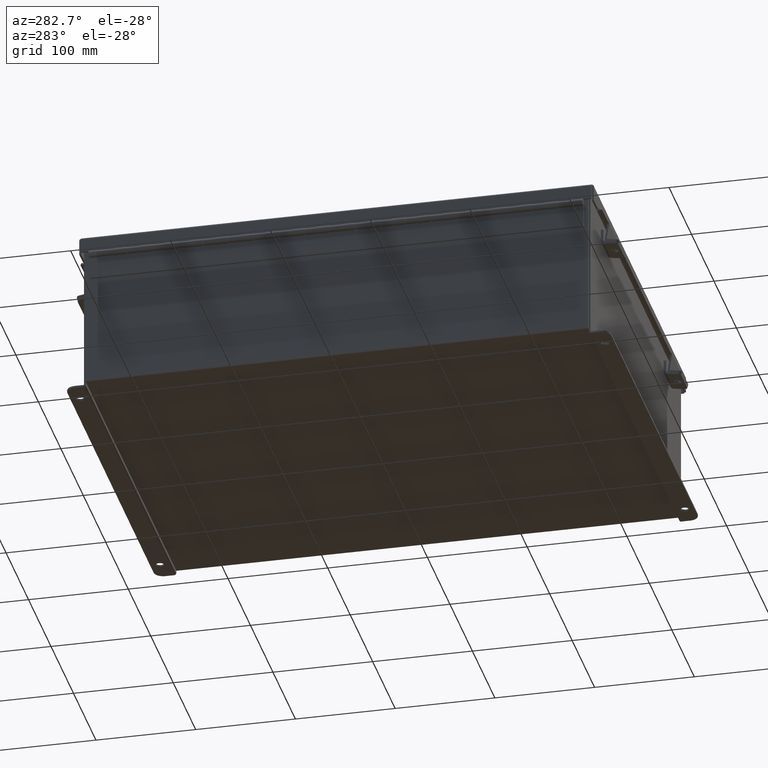
[diagram: clean part render]
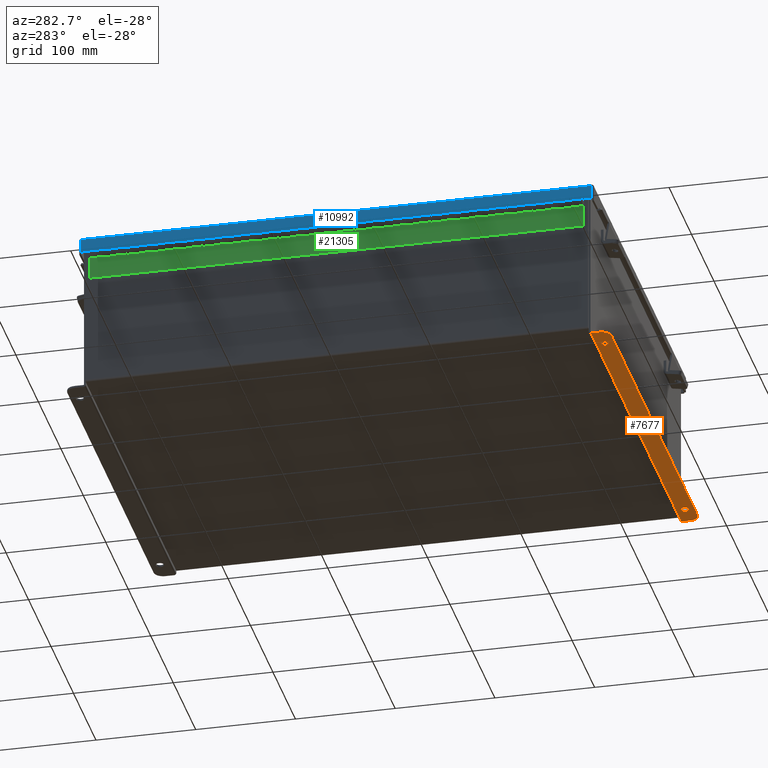
[diagram: same view with three faces highlighted in distinct colors, each labeled with its STEP entity id]
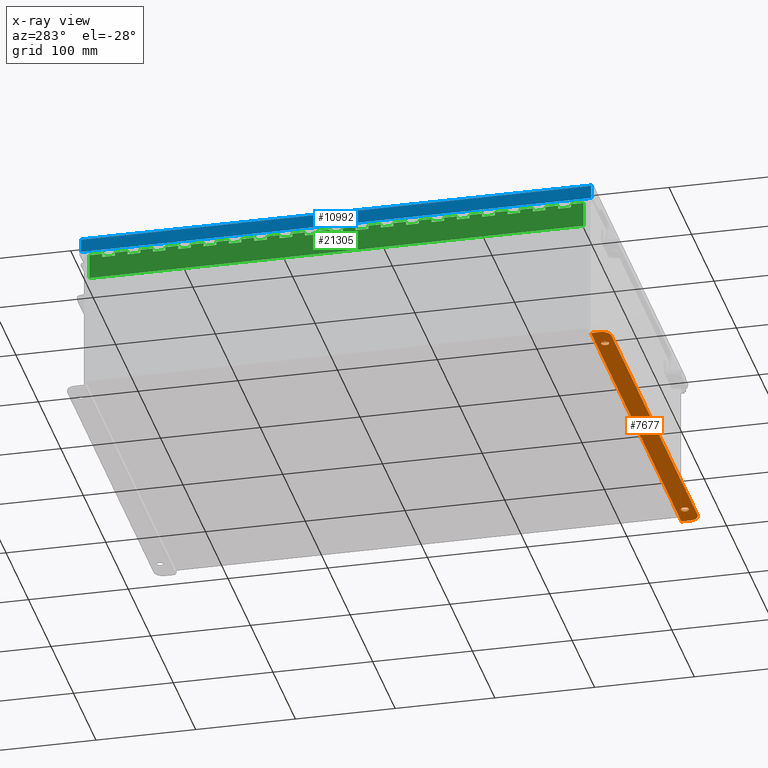
[diagram: x-ray of the same camera — body ghosted, the three highlighted faces saturated]
A machine part, auxiliary view with three faces highlighted in distinct colors.
The next image is the same camera in x-ray (body ghosted, the three faces saturated) — at least one of them is partly hidden behind the body in this view.
Their STEP definitions:

[orange] entity #7677 — the highlighted planar face has unit normal (0, -0, 1).
#29 = CARTESIAN_POINT ( 'NONE',  ( -7.550300000000000900, 0.3627999999999986800, -3.187000000000001200 ) ) ;
#65 = AXIS2_PLACEMENT_3D ( 'NONE', #9401, #4175, #2589 ) ;
#825 = PLANE ( 'NONE',  #65 ) ;
#1533 = VERTEX_POINT ( 'NONE', #7208 ) ;
#2277 = EDGE_CURVE ( 'NONE', #15697, #1533, #4062, .T. ) ;
#2589 = DIRECTION ( 'NONE',  ( -4.919856193148104900E-031, -1.000000000000000000, 3.702694488566362300E-015 ) ) ;
#2773 = FACE_BOUND ( 'NONE', #17649, .T. ) ;
#2853 = VERTEX_POINT ( 'NONE', #7172 ) ;
#3180 = CARTESIAN_POINT ( 'NONE',  ( -6.987800000000000900, 0.3627999999999986800, -3.187000000000001600 ) ) ;
#3730 = EDGE_CURVE ( 'NONE', #13118, #15697, #4523, .T. ) ;
#3871 = EDGE_CURVE ( 'NONE', #18112, #13118, #6979, .T. ) ;
#4062 = CIRCLE ( 'NONE', #13033, 0.3750000000000000600 ) ;
#4131 = CARTESIAN_POINT ( 'NONE',  ( -2.035385365534024800E-024, 0.7377999999999989000, -3.187000000000002900 ) ) ;
#4175 = DIRECTION ( 'NONE',  ( 0.0000000000000000000, 3.702694488566362300E-015, 1.000000000000000000 ) ) ;
#4201 = CARTESIAN_POINT ( 'NONE',  ( 7.925299999999998200, 0.01300000000000010700, -3.187000000000000300 ) ) ;
#4496 = VERTEX_POINT ( 'NONE', #13455 ) ;
#4523 = LINE ( 'NONE', #4131, #22411 ) ;
#4526 = ORIENTED_EDGE ( 'NONE', *, *, #13184, .F. ) ;
#4850 = EDGE_LOOP ( 'NONE', ( #22159, #5961, #15752, #16721, #12387, #20602 ) ) ;
#4891 = DIRECTION ( 'NONE',  ( 0.0000000000000000000, 1.000000000000000000, -3.502369222646487000E-015 ) ) ;
#5237 = CARTESIAN_POINT ( 'NONE',  ( 6.987799999999999100, 0.3628000000000008400, -3.187000000000001200 ) ) ;
#5961 = ORIENTED_EDGE ( 'NONE', *, *, #3871, .T. ) ;
#6384 = DIRECTION ( 'NONE',  ( 0.0000000000000000000, -3.362274453740631800E-015, -1.000000000000000000 ) ) ;
#6445 = ORIENTED_EDGE ( 'NONE', *, *, #10704, .F. ) ;
#6537 = CARTESIAN_POINT ( 'NONE',  ( -7.925300000000000900, 0.3627999999999986800, -3.187000000000005600 ) ) ;
#6721 = CIRCLE ( 'NONE', #11890, 0.1560000000000001900 ) ;
#6979 = CIRCLE ( 'NONE', #22054, 0.3750000000000000600 ) ;
#7003 = DIRECTION ( 'NONE',  ( 0.0000000000000000000, 1.000000000000000000, -3.502369222646487000E-015 ) ) ;
#7172 = CARTESIAN_POINT ( 'NONE',  ( -6.987799999999992900, 0.2067999999999984900, -3.187000000000001200 ) ) ;
#7208 = CARTESIAN_POINT ( 'NONE',  ( 7.925299999999998200, 0.3628000000000008400, -3.187000000000001600 ) ) ;
#7677 = ADVANCED_FACE ( 'NONE', ( #16533, #2773, #21212 ), #825, .F. ) ;
#7705 = LINE ( 'NONE', #21104, #16329 ) ;
#8581 = CIRCLE ( 'NONE', #19538, 0.1560000000000001900 ) ;
#8936 = ORIENTED_EDGE ( 'NONE', *, *, #11595, .F. ) ;
#9401 = CARTESIAN_POINT ( 'NONE',  ( 0.0000000000000000000, -1.092739197465705300E-014, -3.187000000000000300 ) ) ;
#9468 = AXIS2_PLACEMENT_3D ( 'NONE', #5237, #17298, #7003 ) ;
#9924 = DIRECTION ( 'NONE',  ( 0.0000000000000000000, -3.362274453740631800E-015, -1.000000000000000000 ) ) ;
#10043 = VERTEX_POINT ( 'NONE', #11052 ) ;
#10386 = CARTESIAN_POINT ( 'NONE',  ( 7.925299999999998200, -1.092739197465705300E-014, -3.187000000000000300 ) ) ;
#10704 = EDGE_CURVE ( 'NONE', #4496, #2853, #6721, .T. ) ;
#10849 = CARTESIAN_POINT ( 'NONE',  ( 6.987800000000008000, 0.2068000000000006800, -3.187000000000000700 ) ) ;
#10996 = LINE ( 'NONE', #10386, #19746 ) ;
#11052 = CARTESIAN_POINT ( 'NONE',  ( -7.925300000000000900, 0.01300000000000010700, -3.187000000000000300 ) ) ;
#11301 = CARTESIAN_POINT ( 'NONE',  ( -7.550300000000000900, 0.7377999999999989000, -3.187000000000002900 ) ) ;
#11595 = EDGE_CURVE ( 'NONE', #13592, #11736, #20858, .T. ) ;
#11736 = VERTEX_POINT ( 'NONE', #10849 ) ;
#11890 = AXIS2_PLACEMENT_3D ( 'NONE', #20347, #9924, #22091 ) ;
#11998 = EDGE_CURVE ( 'NONE', #2853, #4496, #8581, .T. ) ;
#12084 = DIRECTION ( 'NONE',  ( -4.919856193148104900E-031, -1.000000000000000000, 3.702694488566362300E-015 ) ) ;
#12089 = EDGE_CURVE ( 'NONE', #1533, #13038, #10996, .T. ) ;
#12387 = ORIENTED_EDGE ( 'NONE', *, *, #12089, .T. ) ;
#13033 = AXIS2_PLACEMENT_3D ( 'NONE', #21024, #22291, #16875 ) ;
#13038 = VERTEX_POINT ( 'NONE', #4201 ) ;
#13118 = VERTEX_POINT ( 'NONE', #11301 ) ;
#13184 = EDGE_CURVE ( 'NONE', #11736, #13592, #13378, .T. ) ;
#13378 = CIRCLE ( 'NONE', #18949, 0.1560000000000001900 ) ;
#13455 = CARTESIAN_POINT ( 'NONE',  ( -6.987800000000000900, 0.5187999999999988200, -3.187000000000002500 ) ) ;
#13584 = CARTESIAN_POINT ( 'NONE',  ( -7.925300000000000900, -1.092739197465705300E-014, -3.187000000000000300 ) ) ;
#13592 = VERTEX_POINT ( 'NONE', #18100 ) ;
#13824 = EDGE_LOOP ( 'NONE', ( #6445, #14754 ) ) ;
#14054 = DIRECTION ( 'NONE',  ( 1.000000000000000000, 4.910036603141682400E-031, -0.0000000000000000000 ) ) ;
#14666 = EDGE_CURVE ( 'NONE', #10043, #13038, #7705, .T. ) ;
#14754 = ORIENTED_EDGE ( 'NONE', *, *, #11998, .F. ) ;
#15170 = EDGE_CURVE ( 'NONE', #10043, #18112, #16300, .T. ) ;
#15227 = DIRECTION ( 'NONE',  ( 0.0000000000000000000, -3.362274453740631800E-015, -1.000000000000000000 ) ) ;
#15697 = VERTEX_POINT ( 'NONE', #17076 ) ;
#15752 = ORIENTED_EDGE ( 'NONE', *, *, #3730, .T. ) ;
#15769 = VECTOR ( 'NONE', #20565, 39.37007874015748100 ) ;
#16083 = DIRECTION ( 'NONE',  ( 0.0000000000000000000, -1.000000000000000000, 4.370956789862820400E-015 ) ) ;
#16300 = LINE ( 'NONE', #13584, #15769 ) ;
#16329 = VECTOR ( 'NONE', #14054, 39.37007874015748100 ) ;
#16533 = FACE_BOUND ( 'NONE', #13824, .T. ) ;
#16690 = CARTESIAN_POINT ( 'NONE',  ( 6.987799999999999100, 0.3628000000000008400, -3.187000000000001200 ) ) ;
#16721 = ORIENTED_EDGE ( 'NONE', *, *, #2277, .T. ) ;
#16875 = DIRECTION ( 'NONE',  ( 0.0000000000000000000, -1.000000000000000000, 4.370956789862820400E-015 ) ) ;
#17076 = CARTESIAN_POINT ( 'NONE',  ( 7.550299999999998200, 0.7378000000000011200, -3.187000000000002900 ) ) ;
#17298 = DIRECTION ( 'NONE',  ( 0.0000000000000000000, -3.362274453740631800E-015, -1.000000000000000000 ) ) ;
#17525 = DIRECTION ( 'NONE',  ( 1.000000000000000000, 4.910036603141682400E-031, 0.0000000000000000000 ) ) ;
#17649 = EDGE_LOOP ( 'NONE', ( #8936, #4526 ) ) ;
#17755 = DIRECTION ( 'NONE',  ( -0.0000000000000000000, -3.702694488566362300E-015, -1.000000000000000000 ) ) ;
#18100 = CARTESIAN_POINT ( 'NONE',  ( 6.987799999999999100, 0.5188000000000010400, -3.187000000000001600 ) ) ;
#18112 = VERTEX_POINT ( 'NONE', #6537 ) ;
#18440 = DIRECTION ( 'NONE',  ( 0.0000000000000000000, 1.000000000000000000, -3.502369222646487000E-015 ) ) ;
#18949 = AXIS2_PLACEMENT_3D ( 'NONE', #16690, #6384, #18440 ) ;
#19538 = AXIS2_PLACEMENT_3D ( 'NONE', #3180, #15227, #4891 ) ;
#19746 = VECTOR ( 'NONE', #12084, 39.37007874015748100 ) ;
#20347 = CARTESIAN_POINT ( 'NONE',  ( -6.987800000000000900, 0.3627999999999986800, -3.187000000000001600 ) ) ;
#20565 = DIRECTION ( 'NONE',  ( 4.919856193148104900E-031, 1.000000000000000000, -3.702694488566362300E-015 ) ) ;
#20602 = ORIENTED_EDGE ( 'NONE', *, *, #14666, .F. ) ;
#20858 = CIRCLE ( 'NONE', #9468, 0.1560000000000001900 ) ;
#21024 = CARTESIAN_POINT ( 'NONE',  ( 7.550299999999998200, 0.3628000000000008400, -3.187000000000001200 ) ) ;
#21104 = CARTESIAN_POINT ( 'NONE',  ( 7.925299999999998200, 0.01300000000000229300, -3.187000000000000300 ) ) ;
#21212 = FACE_OUTER_BOUND ( 'NONE', #4850, .T. ) ;
#22054 = AXIS2_PLACEMENT_3D ( 'NONE', #29, #17755, #16083 ) ;
#22091 = DIRECTION ( 'NONE',  ( 0.0000000000000000000, 1.000000000000000000, -3.502369222646487000E-015 ) ) ;
#22159 = ORIENTED_EDGE ( 'NONE', *, *, #15170, .T. ) ;
#22291 = DIRECTION ( 'NONE',  ( -0.0000000000000000000, -3.702694488566362300E-015, -1.000000000000000000 ) ) ;
#22411 = VECTOR ( 'NONE', #17525, 39.37007874015748100 ) ;

[blue] entity #10992 — the highlighted planar face has unit normal (1, -0, 0).
#466 = VECTOR ( 'NONE', #9763, 39.37007874015748100 ) ;
#1637 = FACE_OUTER_BOUND ( 'NONE', #15994, .T. ) ;
#2023 = CARTESIAN_POINT ( 'NONE',  ( 8.156250000000003600, -10.07447893218815200, 0.5502999999999999000 ) ) ;
#2263 = DIRECTION ( 'NONE',  ( 3.971430846686188400E-015, 0.0000000000000000000, 1.000000000000000000 ) ) ;
#3194 = CARTESIAN_POINT ( 'NONE',  ( 8.156250000000001800, 10.07447893218811600, 0.01300000000000010700 ) ) ;
#3719 = EDGE_CURVE ( 'NONE', #8747, #14632, #14759, .T. ) ;
#3767 = DIRECTION ( 'NONE',  ( 3.971430846686188400E-015, 0.0000000000000000000, 1.000000000000000000 ) ) ;
#5188 = VERTEX_POINT ( 'NONE', #21215 ) ;
#5425 = CARTESIAN_POINT ( 'NONE',  ( 8.156250000000001800, 0.0000000000000000000, -3.168943672650545400E-014 ) ) ;
#7338 = LINE ( 'NONE', #15513, #15945 ) ;
#7356 = VECTOR ( 'NONE', #2263, 39.37007874015748100 ) ;
#8270 = EDGE_CURVE ( 'NONE', #9616, #8747, #17054, .T. ) ;
#8747 = VERTEX_POINT ( 'NONE', #15502 ) ;
#8864 = PLANE ( 'NONE',  #16134 ) ;
#9103 = CARTESIAN_POINT ( 'NONE',  ( 8.156250000000001800, 10.07447893218811600, -3.278217592397115700E-014 ) ) ;
#9506 = CARTESIAN_POINT ( 'NONE',  ( 8.156250000000001800, -10.07447893218815200, -1.092739197465705300E-015 ) ) ;
#9616 = VERTEX_POINT ( 'NONE', #3194 ) ;
#9763 = DIRECTION ( 'NONE',  ( -2.258600338820354400E-033, -1.000000000000000000, 0.0000000000000000000 ) ) ;
#10919 = EDGE_CURVE ( 'NONE', #9616, #5188, #7338, .T. ) ;
#10964 = LINE ( 'NONE', #9506, #20800 ) ;
#10992 = ADVANCED_FACE ( 'NONE', ( #1637 ), #8864, .F. ) ;
#11039 = CARTESIAN_POINT ( 'NONE',  ( 8.156250000000003600, 0.0000000000000000000, 0.5503000000000010100 ) ) ;
#11232 = DIRECTION ( 'NONE',  ( 3.971430846686188400E-015, -0.0000000000000000000, 1.000000000000000000 ) ) ;
#11434 = ORIENTED_EDGE ( 'NONE', *, *, #10919, .F. ) ;
#13069 = EDGE_CURVE ( 'NONE', #5188, #14632, #10964, .T. ) ;
#13373 = ORIENTED_EDGE ( 'NONE', *, *, #13069, .F. ) ;
#14062 = DIRECTION ( 'NONE',  ( -1.000000000000000000, -1.157229917429806600E-033, 3.971430846686188400E-015 ) ) ;
#14632 = VERTEX_POINT ( 'NONE', #2023 ) ;
#14759 = LINE ( 'NONE', #11039, #466 ) ;
#15502 = CARTESIAN_POINT ( 'NONE',  ( 8.156250000000003600, 10.07447893218811600, 0.5502999999999999000 ) ) ;
#15513 = CARTESIAN_POINT ( 'NONE',  ( 8.156250000000001800, -10.15625000000001600, 0.01299999999999901400 ) ) ;
#15945 = VECTOR ( 'NONE', #19027, 39.37007874015748100 ) ;
#15994 = EDGE_LOOP ( 'NONE', ( #11434, #20668, #20214, #13373 ) ) ;
#16134 = AXIS2_PLACEMENT_3D ( 'NONE', #5425, #14062, #3767 ) ;
#17054 = LINE ( 'NONE', #9103, #7356 ) ;
#19027 = DIRECTION ( 'NONE',  ( -2.258600338820354400E-033, -1.000000000000000000, -0.0000000000000000000 ) ) ;
#20214 = ORIENTED_EDGE ( 'NONE', *, *, #3719, .T. ) ;
#20668 = ORIENTED_EDGE ( 'NONE', *, *, #8270, .T. ) ;
#20800 = VECTOR ( 'NONE', #11232, 39.37007874015748100 ) ;
#21215 = CARTESIAN_POINT ( 'NONE',  ( 8.156250000000001800, -10.07447893218815200, 0.01299999999999901400 ) ) ;

[green] entity #21305 — the highlighted planar face has unit normal (1, -0, 0).
#63 = DIRECTION ( 'NONE',  ( 0.0000000000000000000, 1.000000000000000000, 0.0000000000000000000 ) ) ;
#86 = EDGE_CURVE ( 'NONE', #16788, #5816, #7884, .T. ) ;
#121 = ORIENTED_EDGE ( 'NONE', *, *, #11377, .F. ) ;
#156 = EDGE_CURVE ( 'NONE', #17509, #3802, #15972, .T. ) ;
#235 = CARTESIAN_POINT ( 'NONE',  ( 1.521028919549333600E-013, 5.999999999999999100, 0.0000000000000000000 ) ) ;
#273 = CARTESIAN_POINT ( 'NONE',  ( 1.521028919549333600E-013, 8.999999999999998200, 0.0000000000000000000 ) ) ;
#352 = VERTEX_POINT ( 'NONE', #8142 ) ;
#419 = CARTESIAN_POINT ( 'NONE',  ( 0.2730000000000000200, 2.500000000000000000, 0.0000000000000000000 ) ) ;
#518 = DIRECTION ( 'NONE',  ( 0.0000000000000000000, 1.000000000000000000, 0.0000000000000000000 ) ) ;
#540 = EDGE_CURVE ( 'NONE', #14112, #16788, #14589, .T. ) ;
#608 = CARTESIAN_POINT ( 'NONE',  ( 0.2730000000000000200, -11.99999999999999800, 0.0000000000000000000 ) ) ;
#692 = VECTOR ( 'NONE', #7540, 39.37007874015748100 ) ;
#737 = ORIENTED_EDGE ( 'NONE', *, *, #18498, .F. ) ;
#800 = EDGE_CURVE ( 'NONE', #18290, #10637, #6258, .T. ) ;
#804 = CARTESIAN_POINT ( 'NONE',  ( 0.1365000000000000100, 17.00000000000000000, -1.707404996040164500E-017 ) ) ;
#814 = VECTOR ( 'NONE', #2539, 39.37007874015748100 ) ;
#866 = DIRECTION ( 'NONE',  ( -1.000000000000000000, 8.005415366049124900E-015, 0.0000000000000000000 ) ) ;
#895 = LINE ( 'NONE', #2235, #4937 ) ;
#900 = LINE ( 'NONE', #12818, #15201 ) ;
#959 = VECTOR ( 'NONE', #2925, 39.37007874015748100 ) ;
#989 = EDGE_CURVE ( 'NONE', #7596, #15606, #21419, .T. ) ;
#1069 = CARTESIAN_POINT ( 'NONE',  ( 0.1365000000000000100, 10.50000000000000000, -1.707404996040164500E-017 ) ) ;
#1100 = VERTEX_POINT ( 'NONE', #7272 ) ;
#1123 = ORIENTED_EDGE ( 'NONE', *, *, #21147, .T. ) ;
#1190 = VECTOR ( 'NONE', #13227, 39.37007874015748100 ) ;
#1193 = FACE_OUTER_BOUND ( 'NONE', #7568, .T. ) ;
#1195 = ORIENTED_EDGE ( 'NONE', *, *, #15276, .F. ) ;
#1214 = CARTESIAN_POINT ( 'NONE',  ( 0.1365000000000000100, 3.999999999999998200, -1.707404996040164500E-017 ) ) ;
#1243 = CARTESIAN_POINT ( 'NONE',  ( 0.2730000000000000200, 15.99999999999999800, 0.0000000000000000000 ) ) ;
#1362 = LINE ( 'NONE', #7672, #19225 ) ;
#1376 = VERTEX_POINT ( 'NONE', #10466 ) ;
#1396 = CARTESIAN_POINT ( 'NONE',  ( 0.1365000000000000100, 13.00000000000000000, -1.707404996040164500E-017 ) ) ;
#1417 = LINE ( 'NONE', #15319, #15163 ) ;
#1437 = LINE ( 'NONE', #16012, #10047 ) ;
#1521 = VECTOR ( 'NONE', #21062, 39.37007874015748100 ) ;
#1547 = ORIENTED_EDGE ( 'NONE', *, *, #86, .F. ) ;
#1582 = VECTOR ( 'NONE', #19672, 39.37007874015748100 ) ;
#1588 = CARTESIAN_POINT ( 'NONE',  ( 0.1365000000000000100, 1.500000000000000900, -1.707404996040164500E-017 ) ) ;
#1589 = EDGE_CURVE ( 'NONE', #6855, #2973, #2210, .T. ) ;
#1635 = LINE ( 'NONE', #5653, #5721 ) ;
#1647 = VECTOR ( 'NONE', #4238, 39.37007874015748100 ) ;
#1648 = ORIENTED_EDGE ( 'NONE', *, *, #20995, .T. ) ;
#1691 = VECTOR ( 'NONE', #19886, 39.37007874015748100 ) ;
#1717 = LINE ( 'NONE', #2945, #1190 ) ;
#1760 = CARTESIAN_POINT ( 'NONE',  ( 1.136500000000000100, 0.0000000000000000000, 0.0000000000000000000 ) ) ;
#1761 = VERTEX_POINT ( 'NONE', #8027 ) ;
#1783 = EDGE_CURVE ( 'NONE', #8485, #6176, #3548, .T. ) ;
#1810 = EDGE_CURVE ( 'NONE', #16792, #19580, #11575, .T. ) ;
#1844 = VECTOR ( 'NONE', #5433, 39.37007874015748100 ) ;
#1864 = DIRECTION ( 'NONE',  ( -7.004738445292983000E-018, 1.000000000000000000, 0.0000000000000000000 ) ) ;
#1888 = CARTESIAN_POINT ( 'NONE',  ( 0.0000000000000000000, 4.500000000000000900, 0.0000000000000000000 ) ) ;
#1890 = LINE ( 'NONE', #8761, #15649 ) ;
#1904 = CARTESIAN_POINT ( 'NONE',  ( 0.2730000000000000200, 3.499999999999999100, 0.0000000000000000000 ) ) ;
#2069 = VERTEX_POINT ( 'NONE', #1069 ) ;
#2099 = CARTESIAN_POINT ( 'NONE',  ( 0.1365000000000000100, 16.00000000000000000, -1.707404996040164500E-017 ) ) ;
#2143 = CARTESIAN_POINT ( 'NONE',  ( 0.0000000000000000000, 16.50000000000000000, 0.0000000000000000000 ) ) ;
#2163 = VERTEX_POINT ( 'NONE', #8307 ) ;
#2196 = CARTESIAN_POINT ( 'NONE',  ( 0.2730000000000000200, 9.999999999999996400, 0.0000000000000000000 ) ) ;
#2203 = EDGE_CURVE ( 'NONE', #18021, #22326, #7328, .T. ) ;
#2210 = LINE ( 'NONE', #17846, #1647 ) ;
#2234 = VECTOR ( 'NONE', #21099, 39.37007874015748100 ) ;
#2235 = CARTESIAN_POINT ( 'NONE',  ( 0.0000000000000000000, 17.50000000000000000, 0.0000000000000000000 ) ) ;
#2239 = VERTEX_POINT ( 'NONE', #16087 ) ;
#2287 = ORIENTED_EDGE ( 'NONE', *, *, #12135, .T. ) ;
#2364 = CARTESIAN_POINT ( 'NONE',  ( 0.2730000000000000200, -5.999999999999999100, 0.0000000000000000000 ) ) ;
#2408 = CARTESIAN_POINT ( 'NONE',  ( 0.2730000000000000200, 6.500000000000000900, 0.0000000000000000000 ) ) ;
#2412 = VECTOR ( 'NONE', #16959, 39.37007874015748100 ) ;
#2429 = VERTEX_POINT ( 'NONE', #20254 ) ;
#2504 = ORIENTED_EDGE ( 'NONE', *, *, #1783, .F. ) ;
#2539 = DIRECTION ( 'NONE',  ( -1.000000000000000000, 0.0000000000000000000, 0.0000000000000000000 ) ) ;
#2553 = VECTOR ( 'NONE', #15928, 39.37007874015748100 ) ;
#2561 = DIRECTION ( 'NONE',  ( 0.0000000000000000000, 1.000000000000000000, 0.0000000000000000000 ) ) ;
#2607 = VERTEX_POINT ( 'NONE', #5893 ) ;
#2616 = ORIENTED_EDGE ( 'NONE', *, *, #20107, .F. ) ;
#2702 = EDGE_CURVE ( 'NONE', #12255, #21248, #18908, .T. ) ;
#2719 = CARTESIAN_POINT ( 'NONE',  ( 0.2730000000000000200, -13.00000000000000000, 0.0000000000000000000 ) ) ;
#2769 = ORIENTED_EDGE ( 'NONE', *, *, #2203, .F. ) ;
#2784 = CARTESIAN_POINT ( 'NONE',  ( 0.0000000000000000000, 8.500000000000000000, 0.0000000000000000000 ) ) ;
#2786 = ORIENTED_EDGE ( 'NONE', *, *, #10486, .F. ) ;
#2813 = VECTOR ( 'NONE', #11697, 39.37007874015748100 ) ;
#2868 = EDGE_CURVE ( 'NONE', #15768, #8889, #16713, .T. ) ;
#2873 = VERTEX_POINT ( 'NONE', #16507 ) ;
#2895 = EDGE_CURVE ( 'NONE', #8889, #15808, #17260, .T. ) ;
#2925 = DIRECTION ( 'NONE',  ( -1.000000000000000000, 8.005415366049124900E-015, 0.0000000000000000000 ) ) ;
#2945 = CARTESIAN_POINT ( 'NONE',  ( 0.1365000000000000100, 0.0000000000000000000, -1.707404996040164500E-017 ) ) ;
#2950 = CARTESIAN_POINT ( 'NONE',  ( 0.1365000000000000100, 12.50000000000000000, -1.707404996040164500E-017 ) ) ;
#2973 = VERTEX_POINT ( 'NONE', #8619 ) ;
#2987 = CARTESIAN_POINT ( 'NONE',  ( 1.521028919549333600E-013, 19.00000000000000000, 0.0000000000000000000 ) ) ;
#3078 = CARTESIAN_POINT ( 'NONE',  ( 0.0000000000000000000, 3.499999999999999100, 0.0000000000000000000 ) ) ;
#3115 = DIRECTION ( 'NONE',  ( 0.0000000000000000000, 1.000000000000000000, 0.0000000000000000000 ) ) ;
#3161 = CARTESIAN_POINT ( 'NONE',  ( 0.2730000000000000200, -2.000000000000000000, 0.0000000000000000000 ) ) ;
#3183 = CARTESIAN_POINT ( 'NONE',  ( 0.2730000000000000200, -7.000000000000000000, 0.0000000000000000000 ) ) ;
#3188 = ORIENTED_EDGE ( 'NONE', *, *, #8497, .F. ) ;
#3190 = VECTOR ( 'NONE', #2561, 39.37007874015748100 ) ;
#3231 = CARTESIAN_POINT ( 'NONE',  ( 0.1365000000000000100, 0.0000000000000000000, -1.707404996040164500E-017 ) ) ;
#3299 = CARTESIAN_POINT ( 'NONE',  ( 0.1365000000000000100, 0.0000000000000000000, -1.707404996040164500E-017 ) ) ;
#3340 = EDGE_CURVE ( 'NONE', #14164, #1376, #10984, .T. ) ;
#3366 = VERTEX_POINT ( 'NONE', #15588 ) ;
#3381 = DIRECTION ( 'NONE',  ( 0.0000000000000000000, 1.000000000000000000, 0.0000000000000000000 ) ) ;
#3429 = VERTEX_POINT ( 'NONE', #12007 ) ;
#3435 = VERTEX_POINT ( 'NONE', #20868 ) ;
#3475 = VERTEX_POINT ( 'NONE', #22300 ) ;
#3523 = ORIENTED_EDGE ( 'NONE', *, *, #21290, .F. ) ;
#3548 = LINE ( 'NONE', #21682, #8103 ) ;
#3636 = LINE ( 'NONE', #4953, #16848 ) ;
#3639 = EDGE_CURVE ( 'NONE', #9602, #11334, #14775, .T. ) ;
#3650 = VERTEX_POINT ( 'NONE', #2099 ) ;
#3657 = VERTEX_POINT ( 'NONE', #17638 ) ;
#3690 = ORIENTED_EDGE ( 'NONE', *, *, #15982, .F. ) ;
#3740 = EDGE_CURVE ( 'NONE', #14112, #11676, #18276, .T. ) ;
#3795 = ORIENTED_EDGE ( 'NONE', *, *, #13796, .F. ) ;
#3802 = VERTEX_POINT ( 'NONE', #13645 ) ;
#3855 = CARTESIAN_POINT ( 'NONE',  ( 0.2730000000000000200, 8.999999999999996400, 0.0000000000000000000 ) ) ;
#3967 = DIRECTION ( 'NONE',  ( 0.0000000000000000000, 1.000000000000000000, 0.0000000000000000000 ) ) ;
#4026 = VERTEX_POINT ( 'NONE', #10685 ) ;
#4088 = DIRECTION ( 'NONE',  ( 0.0000000000000000000, 1.000000000000000000, 0.0000000000000000000 ) ) ;
#4093 = ORIENTED_EDGE ( 'NONE', *, *, #3340, .T. ) ;
#4176 = VECTOR ( 'NONE', #5849, 39.37007874015748100 ) ;
#4204 = CARTESIAN_POINT ( 'NONE',  ( 0.1365000000000000100, 0.0000000000000000000, -1.707404996040164500E-017 ) ) ;
#4238 = DIRECTION ( 'NONE',  ( 0.0000000000000000000, 1.000000000000000000, 0.0000000000000000000 ) ) ;
#4264 = CARTESIAN_POINT ( 'NONE',  ( 0.2730000000000000200, 4.999999999999998200, 0.0000000000000000000 ) ) ;
#4326 = ORIENTED_EDGE ( 'NONE', *, *, #2868, .T. ) ;
#4328 = ORIENTED_EDGE ( 'NONE', *, *, #17001, .T. ) ;
#4375 = VERTEX_POINT ( 'NONE', #16769 ) ;
#4381 = VECTOR ( 'NONE', #19979, 39.37007874015748100 ) ;
#4405 = VECTOR ( 'NONE', #15713, 39.37007874015748100 ) ;
#4514 = CARTESIAN_POINT ( 'NONE',  ( 0.2730000000000000200, 0.4999999999999996100, 0.0000000000000000000 ) ) ;
#4521 = DIRECTION ( 'NONE',  ( -1.000000000000000000, 0.0000000000000000000, 0.0000000000000000000 ) ) ;
#4587 = CARTESIAN_POINT ( 'NONE',  ( 0.1365000000000000100, 0.0000000000000000000, -1.707404996040164500E-017 ) ) ;
#4629 = VECTOR ( 'NONE', #6260, 39.37007874015748100 ) ;
#4817 = VERTEX_POINT ( 'NONE', #14430 ) ;
#4851 = DIRECTION ( 'NONE',  ( -1.000000000000000000, 0.0000000000000000000, 0.0000000000000000000 ) ) ;
#4881 = LINE ( 'NONE', #3231, #17575 ) ;
#4897 = EDGE_CURVE ( 'NONE', #2873, #7112, #12531, .T. ) ;
#4937 = VECTOR ( 'NONE', #17758, 39.37007874015748100 ) ;
#4945 = DIRECTION ( 'NONE',  ( 0.0000000000000000000, 1.000000000000000000, 0.0000000000000000000 ) ) ;
#4948 = CARTESIAN_POINT ( 'NONE',  ( 0.0000000000000000000, 6.500000000000000900, 0.0000000000000000000 ) ) ;
#4953 = CARTESIAN_POINT ( 'NONE',  ( 0.1365000000000000100, 0.0000000000000000000, -1.707404996040164500E-017 ) ) ;
#4987 = DIRECTION ( 'NONE',  ( 0.0000000000000000000, 1.000000000000000000, 0.0000000000000000000 ) ) ;
#4989 = LINE ( 'NONE', #2987, #14155 ) ;
#5021 = LINE ( 'NONE', #13611, #18243 ) ;
#5055 = VERTEX_POINT ( 'NONE', #20992 ) ;
#5139 = VECTOR ( 'NONE', #19935, 39.37007874015748100 ) ;
#5168 = CARTESIAN_POINT ( 'NONE',  ( 1.136499999999999800, 19.50000000000000000, 0.0000000000000000000 ) ) ;
#5169 = CARTESIAN_POINT ( 'NONE',  ( 0.1365000000000000100, 8.999999999999998200, -1.707404996040164500E-017 ) ) ;
#5210 = VERTEX_POINT ( 'NONE', #21453 ) ;
#5234 = CARTESIAN_POINT ( 'NONE',  ( 0.2730000000000000200, 16.99999999999999600, 0.0000000000000000000 ) ) ;
#5267 = CARTESIAN_POINT ( 'NONE',  ( 1.521028919549333600E-013, 16.00000000000000000, 0.0000000000000000000 ) ) ;
#5365 = ORIENTED_EDGE ( 'NONE', *, *, #17945, .F. ) ;
#5386 = EDGE_CURVE ( 'NONE', #10234, #8485, #21788, .T. ) ;
#5433 = DIRECTION ( 'NONE',  ( 0.0000000000000000000, 1.000000000000000000, 0.0000000000000000000 ) ) ;
#5448 = VECTOR ( 'NONE', #4945, 39.37007874015748100 ) ;
#5477 = ORIENTED_EDGE ( 'NONE', *, *, #12341, .T. ) ;
#5530 = VECTOR ( 'NONE', #12310, 39.37007874015748100 ) ;
#5580 = LINE ( 'NONE', #5267, #9574 ) ;
#5623 = ORIENTED_EDGE ( 'NONE', *, *, #4897, .T. ) ;
#5625 = CARTESIAN_POINT ( 'NONE',  ( 0.2730000000000000200, 15.50000000000000000, 0.0000000000000000000 ) ) ;
#5653 = CARTESIAN_POINT ( 'NONE',  ( 0.0000000000000000000, 0.0000000000000000000, 0.0000000000000000000 ) ) ;
#5677 = DIRECTION ( 'NONE',  ( -1.000000000000000000, 8.005415366049124900E-015, 0.0000000000000000000 ) ) ;
#5687 = CARTESIAN_POINT ( 'NONE',  ( 0.1365000000000000100, 0.0000000000000000000, -1.707404996040164500E-017 ) ) ;
#5721 = VECTOR ( 'NONE', #14200, 39.37007874015748100 ) ;
#5752 = DIRECTION ( 'NONE',  ( -1.000000000000000000, 0.0000000000000000000, 0.0000000000000000000 ) ) ;
#5802 = EDGE_CURVE ( 'NONE', #15726, #15808, #16574, .T. ) ;
#5803 = CARTESIAN_POINT ( 'NONE',  ( 0.1365000000000000100, 11.99999999999999800, -1.707404996040164500E-017 ) ) ;
#5816 = VERTEX_POINT ( 'NONE', #20937 ) ;
#5849 = DIRECTION ( 'NONE',  ( 0.0000000000000000000, 1.000000000000000000, 0.0000000000000000000 ) ) ;
#5890 = CARTESIAN_POINT ( 'NONE',  ( 0.1365000000000000100, 11.50000000000000200, -1.707404996040164500E-017 ) ) ;
#5893 = CARTESIAN_POINT ( 'NONE',  ( 0.1365000000000000100, 9.500000000000000000, -1.707404996040164500E-017 ) ) ;
#5934 = VECTOR ( 'NONE', #15689, 39.37007874015748100 ) ;
#5954 = EDGE_CURVE ( 'NONE', #3435, #15726, #4989, .T. ) ;
#6086 = EDGE_CURVE ( 'NONE', #4817, #18551, #11951, .T. ) ;
#6111 = LINE ( 'NONE', #14983, #959 ) ;
#6136 = LINE ( 'NONE', #13531, #18816 ) ;
#6139 = LINE ( 'NONE', #235, #1521 ) ;
#6152 = ORIENTED_EDGE ( 'NONE', *, *, #2702, .F. ) ;
#6175 = VECTOR ( 'NONE', #19788, 39.37007874015748100 ) ;
#6176 = VERTEX_POINT ( 'NONE', #8806 ) ;
#6249 = LINE ( 'NONE', #9072, #14305 ) ;
#6258 = LINE ( 'NONE', #19527, #14852 ) ;
#6260 = DIRECTION ( 'NONE',  ( 0.0000000000000000000, 1.000000000000000000, 0.0000000000000000000 ) ) ;
#6267 = ORIENTED_EDGE ( 'NONE', *, *, #15102, .F. ) ;
#6290 = DIRECTION ( 'NONE',  ( 0.0000000000000000000, 1.000000000000000000, 0.0000000000000000000 ) ) ;
#6302 = LINE ( 'NONE', #12906, #1691 ) ;
#6347 = VECTOR ( 'NONE', #4521, 39.37007874015748100 ) ;
#6349 = VERTEX_POINT ( 'NONE', #5890 ) ;
#6548 = LINE ( 'NONE', #6621, #18667 ) ;
#6577 = LINE ( 'NONE', #15199, #15160 ) ;
#6621 = CARTESIAN_POINT ( 'NONE',  ( 0.0000000000000000000, 0.4999999999999996100, 0.0000000000000000000 ) ) ;
#6704 = CARTESIAN_POINT ( 'NONE',  ( 0.2730000000000000200, 5.500000000000000000, 0.0000000000000000000 ) ) ;
#6785 = VERTEX_POINT ( 'NONE', #21027 ) ;
#6838 = VECTOR ( 'NONE', #10691, 39.37007874015748100 ) ;
#6855 = VERTEX_POINT ( 'NONE', #21527 ) ;
#6877 = EDGE_CURVE ( 'NONE', #11334, #11676, #900, .T. ) ;
#6904 = DIRECTION ( 'NONE',  ( -1.000000000000000000, 8.005415366049124900E-015, 0.0000000000000000000 ) ) ;
#6909 = CARTESIAN_POINT ( 'NONE',  ( 0.1365000000000000100, 17.50000000000000000, -1.707404996040164500E-017 ) ) ;
#6943 = DIRECTION ( 'NONE',  ( -1.000000000000000000, 0.0000000000000000000, -0.0000000000000000000 ) ) ;
#6980 = ORIENTED_EDGE ( 'NONE', *, *, #14302, .F. ) ;
#7005 = LINE ( 'NONE', #17483, #1844 ) ;
#7045 = VECTOR ( 'NONE', #16623, 39.37007874015748100 ) ;
#7112 = VERTEX_POINT ( 'NONE', #15573 ) ;
#7119 = VERTEX_POINT ( 'NONE', #4264 ) ;
#7193 = CARTESIAN_POINT ( 'NONE',  ( 0.1365000000000000100, 2.999999999999999100, -1.707404996040164500E-017 ) ) ;
#7213 = ORIENTED_EDGE ( 'NONE', *, *, #8668, .F. ) ;
#7242 = DIRECTION ( 'NONE',  ( -1.000000000000000000, 0.0000000000000000000, 0.0000000000000000000 ) ) ;
#7272 = CARTESIAN_POINT ( 'NONE',  ( 0.2730000000000000200, 9.500000000000000000, 0.0000000000000000000 ) ) ;
#7328 = LINE ( 'NONE', #8916, #5139 ) ;
#7335 = VERTEX_POINT ( 'NONE', #5169 ) ;
#7491 = VERTEX_POINT ( 'NONE', #12884 ) ;
#7540 = DIRECTION ( 'NONE',  ( -1.000000000000000000, 8.005415366049124900E-015, 0.0000000000000000000 ) ) ;
#7568 = EDGE_LOOP ( 'NONE', ( #19695, #5365, #15280, #4326, #11032, #14620, #14729, #20870, #18749, #7213, #2769, #2786, #8375, #13807, #15275, #6267, #15861, #22029, #12802, #3523, #4328, #10650, #3795, #10478, #21541, #16668, #9437, #16837, #5623, #737, #8540, #12794, #15862, #6980, #15284, #21066, #1648, #17585, #2504, #8011, #15633, #15577, #6152, #19866, #7764, #10310, #1195, #3690, #9789, #18578, #1547, #16510, #20399, #15731, #10485, #2616, #4093, #16937, #19295, #9985, #17287, #11152, #16029, #18835, #2287, #19237, #16124, #17682, #1123, #3188, #10319, #18495, #18789, #11622, #121, #12192, #5477, #11134, #18277, #22312 ) ) ;
#7596 = VERTEX_POINT ( 'NONE', #19626 ) ;
#7627 = VERTEX_POINT ( 'NONE', #12719 ) ;
#7638 = CARTESIAN_POINT ( 'NONE',  ( 0.2730000000000000200, 11.50000000000000200, 0.0000000000000000000 ) ) ;
#7647 = VERTEX_POINT ( 'NONE', #7638 ) ;
#7672 = CARTESIAN_POINT ( 'NONE',  ( 1.521028919549333600E-013, 14.00000000000000000, 0.0000000000000000000 ) ) ;
#7764 = ORIENTED_EDGE ( 'NONE', *, *, #21028, .T. ) ;
#7780 = VERTEX_POINT ( 'NONE', #9635 ) ;
#7796 = DIRECTION ( 'NONE',  ( 0.0000000000000000000, 1.000000000000000000, 0.0000000000000000000 ) ) ;
#7810 = EDGE_CURVE ( 'NONE', #5816, #14086, #14343, .T. ) ;
#7884 = LINE ( 'NONE', #11580, #4381 ) ;
#7936 = CARTESIAN_POINT ( 'NONE',  ( 0.1365000000000000100, 0.0000000000000000000, -1.707404996040164500E-017 ) ) ;
#7953 = VECTOR ( 'NONE', #13587, 39.37007874015748100 ) ;
#7961 = LINE ( 'NONE', #10137, #16057 ) ;
#8011 = ORIENTED_EDGE ( 'NONE', *, *, #5386, .F. ) ;
#8017 = VERTEX_POINT ( 'NONE', #6909 ) ;
#8027 = CARTESIAN_POINT ( 'NONE',  ( 0.1365000000000000100, 18.50000000000000000, -1.707404996040164500E-017 ) ) ;
#8031 = CARTESIAN_POINT ( 'NONE',  ( 0.1365000000000000100, 0.0000000000000000000, -1.707404996040164500E-017 ) ) ;
#8103 = VECTOR ( 'NONE', #11404, 39.37007874015748100 ) ;
#8142 = CARTESIAN_POINT ( 'NONE',  ( 0.2730000000000000200, 12.99999999999999800, 0.0000000000000000000 ) ) ;
#8216 = VERTEX_POINT ( 'NONE', #3855 ) ;
#8252 = DIRECTION ( 'NONE',  ( -1.000000000000000000, 8.005415366049124900E-015, 0.0000000000000000000 ) ) ;
#8284 = EDGE_CURVE ( 'NONE', #12912, #19580, #11870, .T. ) ;
#8297 = DIRECTION ( 'NONE',  ( 0.0000000000000000000, 1.000000000000000000, 0.0000000000000000000 ) ) ;
#8307 = CARTESIAN_POINT ( 'NONE',  ( 0.2730000000000000200, 16.50000000000000000, 0.0000000000000000000 ) ) ;
#8319 = CARTESIAN_POINT ( 'NONE',  ( 1.521028919549333600E-013, 7.000000000000000900, 0.0000000000000000000 ) ) ;
#8375 = ORIENTED_EDGE ( 'NONE', *, *, #21539, .T. ) ;
#8433 = LINE ( 'NONE', #20285, #17112 ) ;
#8442 = EDGE_CURVE ( 'NONE', #16675, #7119, #8651, .T. ) ;
#8485 = VERTEX_POINT ( 'NONE', #20106 ) ;
#8497 = EDGE_CURVE ( 'NONE', #16595, #19139, #17848, .T. ) ;
#8540 = ORIENTED_EDGE ( 'NONE', *, *, #17148, .F. ) ;
#8619 = CARTESIAN_POINT ( 'NONE',  ( 0.2730000000000000200, 1.999999999999998400, 0.0000000000000000000 ) ) ;
#8651 = LINE ( 'NONE', #16575, #4629 ) ;
#8668 = EDGE_CURVE ( 'NONE', #22326, #1761, #18655, .T. ) ;
#8761 = CARTESIAN_POINT ( 'NONE',  ( 0.2730000000000000200, 0.0000000000000000000, 0.0000000000000000000 ) ) ;
#8801 = LINE ( 'NONE', #21874, #22115 ) ;
#8806 = CARTESIAN_POINT ( 'NONE',  ( 0.1365000000000000100, 11.00000000000000000, -1.707404996040164500E-017 ) ) ;
#8889 = VERTEX_POINT ( 'NONE', #8995 ) ;
#8894 = LINE ( 'NONE', #15488, #17007 ) ;
#8899 = EDGE_CURVE ( 'NONE', #17543, #15768, #1635, .T. ) ;
#8916 = CARTESIAN_POINT ( 'NONE',  ( 1.521028919549333600E-013, 18.00000000000000000, 0.0000000000000000000 ) ) ;
#8920 = EDGE_CURVE ( 'NONE', #3475, #6785, #6249, .T. ) ;
#8925 = CARTESIAN_POINT ( 'NONE',  ( 1.521028919549333600E-013, 13.00000000000000000, 0.0000000000000000000 ) ) ;
#8964 = CARTESIAN_POINT ( 'NONE',  ( 0.2730000000000000200, 0.9999999999999970000, 0.0000000000000000000 ) ) ;
#8973 = VERTEX_POINT ( 'NONE', #5803 ) ;
#8995 = CARTESIAN_POINT ( 'NONE',  ( 1.136500000000000100, 19.50000000000000000, 0.0000000000000000000 ) ) ;
#9072 = CARTESIAN_POINT ( 'NONE',  ( 0.1365000000000000100, 0.0000000000000000000, -1.707404996040164500E-017 ) ) ;
#9087 = VECTOR ( 'NONE', #10927, 39.37007874015748100 ) ;
#9104 = LINE ( 'NONE', #18123, #18292 ) ;
#9107 = CARTESIAN_POINT ( 'NONE',  ( 0.1365000000000000100, 8.500000000000000000, -1.707404996040164500E-017 ) ) ;
#9181 = EDGE_CURVE ( 'NONE', #12912, #4026, #8894, .T. ) ;
#9190 = CARTESIAN_POINT ( 'NONE',  ( 0.2730000000000000200, -10.00000000000000000, 0.0000000000000000000 ) ) ;
#9359 = DIRECTION ( 'NONE',  ( -1.000000000000000000, 8.005415366049124900E-015, 0.0000000000000000000 ) ) ;
#9377 = CARTESIAN_POINT ( 'NONE',  ( 0.2730000000000000200, -5.000000000000000000, 0.0000000000000000000 ) ) ;
#9437 = ORIENTED_EDGE ( 'NONE', *, *, #11197, .F. ) ;
#9452 = CARTESIAN_POINT ( 'NONE',  ( 0.1365000000000000100, 2.000000000000000000, -1.707404996040164500E-017 ) ) ;
#9469 = EDGE_CURVE ( 'NONE', #22230, #4375, #11546, .T. ) ;
#9574 = VECTOR ( 'NONE', #19109, 39.37007874015748100 ) ;
#9602 = VERTEX_POINT ( 'NONE', #22121 ) ;
#9635 = CARTESIAN_POINT ( 'NONE',  ( 0.1365000000000000100, 0.4999999999999996100, -1.707404996040164500E-017 ) ) ;
#9757 = DIRECTION ( 'NONE',  ( 0.0000000000000000000, 1.000000000000000000, 0.0000000000000000000 ) ) ;
#9764 = VECTOR ( 'NONE', #21675, 39.37007874015748100 ) ;
#9789 = ORIENTED_EDGE ( 'NONE', *, *, #14949, .T. ) ;
#9856 = CARTESIAN_POINT ( 'NONE',  ( 0.2730000000000000200, 10.50000000000000000, 0.0000000000000000000 ) ) ;
#9902 = VERTEX_POINT ( 'NONE', #5625 ) ;
#9932 = LINE ( 'NONE', #1888, #5934 ) ;
#9985 = ORIENTED_EDGE ( 'NONE', *, *, #156, .F. ) ;
#9996 = CARTESIAN_POINT ( 'NONE',  ( 0.1365000000000000100, 0.0000000000000000000, -1.707404996040164500E-017 ) ) ;
#10002 = LINE ( 'NONE', #11757, #14060 ) ;
#10047 = VECTOR ( 'NONE', #3967, 39.37007874015748100 ) ;
#10072 = CARTESIAN_POINT ( 'NONE',  ( 0.1365000000000000100, 0.0000000000000000000, -1.707404996040164500E-017 ) ) ;
#10137 = CARTESIAN_POINT ( 'NONE',  ( 0.0000000000000000000, 10.50000000000000000, 0.0000000000000000000 ) ) ;
#10182 = VECTOR ( 'NONE', #16971, 39.37007874015748100 ) ;
#10234 = VERTEX_POINT ( 'NONE', #9856 ) ;
#10263 = EDGE_CURVE ( 'NONE', #4375, #18733, #15337, .T. ) ;
#10310 = ORIENTED_EDGE ( 'NONE', *, *, #21995, .F. ) ;
#10319 = ORIENTED_EDGE ( 'NONE', *, *, #14142, .F. ) ;
#10326 = LINE ( 'NONE', #22030, #13829 ) ;
#10375 = CARTESIAN_POINT ( 'NONE',  ( 0.2730000000000000200, -15.00000000000000000, 0.0000000000000000000 ) ) ;
#10393 = EDGE_CURVE ( 'NONE', #13448, #10598, #21360, .T. ) ;
#10466 = CARTESIAN_POINT ( 'NONE',  ( 0.1365000000000000100, 6.500000000000000900, -1.707404996040164500E-017 ) ) ;
#10478 = ORIENTED_EDGE ( 'NONE', *, *, #17465, .F. ) ;
#10483 = DIRECTION ( 'NONE',  ( 0.0000000000000000000, 1.000000000000000000, 0.0000000000000000000 ) ) ;
#10485 = ORIENTED_EDGE ( 'NONE', *, *, #3639, .F. ) ;
#10486 = EDGE_CURVE ( 'NONE', #21493, #18021, #7005, .T. ) ;
#10585 = VERTEX_POINT ( 'NONE', #15965 ) ;
#10598 = VERTEX_POINT ( 'NONE', #17715 ) ;
#10637 = VERTEX_POINT ( 'NONE', #804 ) ;
#10650 = ORIENTED_EDGE ( 'NONE', *, *, #18931, .F. ) ;
#10659 = EDGE_CURVE ( 'NONE', #2873, #7627, #16411, .T. ) ;
#10685 = CARTESIAN_POINT ( 'NONE',  ( 0.2730000000000000200, 2.999999999999997300, 0.0000000000000000000 ) ) ;
#10691 = DIRECTION ( 'NONE',  ( 0.0000000000000000000, 1.000000000000000000, 0.0000000000000000000 ) ) ;
#10693 = VECTOR ( 'NONE', #16153, 39.37007874015748100 ) ;
#10810 = EDGE_CURVE ( 'NONE', #10637, #8017, #4881, .T. ) ;
#10825 = LINE ( 'NONE', #8925, #2234 ) ;
#10927 = DIRECTION ( 'NONE',  ( -1.000000000000000000, 0.0000000000000000000, 0.0000000000000000000 ) ) ;
#10984 = LINE ( 'NONE', #4948, #15061 ) ;
#10999 = EDGE_CURVE ( 'NONE', #17509, #6785, #18950, .T. ) ;
#11032 = ORIENTED_EDGE ( 'NONE', *, *, #2895, .T. ) ;
#11134 = ORIENTED_EDGE ( 'NONE', *, *, #10263, .F. ) ;
#11152 = ORIENTED_EDGE ( 'NONE', *, *, #8920, .F. ) ;
#11197 = EDGE_CURVE ( 'NONE', #7627, #7596, #1362, .T. ) ;
#11214 = EDGE_CURVE ( 'NONE', #3657, #15606, #15110, .T. ) ;
#11222 = LINE ( 'NONE', #2364, #10693 ) ;
#11258 = DIRECTION ( 'NONE',  ( -1.000000000000000000, 0.0000000000000000000, 0.0000000000000000000 ) ) ;
#11262 = LINE ( 'NONE', #12616, #1582 ) ;
#11298 = LINE ( 'NONE', #16781, #15375 ) ;
#11334 = VERTEX_POINT ( 'NONE', #13049 ) ;
#11377 = EDGE_CURVE ( 'NONE', #2973, #16792, #11298, .T. ) ;
#11404 = DIRECTION ( 'NONE',  ( -1.000000000000000000, 8.005415366049124900E-015, 0.0000000000000000000 ) ) ;
#11438 = DIRECTION ( 'NONE',  ( -1.000000000000000000, 8.005415366049124900E-015, 0.0000000000000000000 ) ) ;
#11528 = DIRECTION ( 'NONE',  ( -1.000000000000000000, 0.0000000000000000000, 0.0000000000000000000 ) ) ;
#11546 = LINE ( 'NONE', #13104, #7045 ) ;
#11575 = LINE ( 'NONE', #16428, #20334 ) ;
#11580 = CARTESIAN_POINT ( 'NONE',  ( 1.521028919549333600E-013, 8.000000000000000000, 0.0000000000000000000 ) ) ;
#11622 = ORIENTED_EDGE ( 'NONE', *, *, #1810, .F. ) ;
#11670 = EDGE_CURVE ( 'NONE', #2429, #3435, #1890, .T. ) ;
#11676 = VERTEX_POINT ( 'NONE', #20924 ) ;
#11697 = DIRECTION ( 'NONE',  ( 0.0000000000000000000, 1.000000000000000000, 0.0000000000000000000 ) ) ;
#11757 = CARTESIAN_POINT ( 'NONE',  ( 0.2730000000000000200, -4.000000000000000000, 0.0000000000000000000 ) ) ;
#11781 = DIRECTION ( 'NONE',  ( 0.0000000000000000000, 1.000000000000000000, 0.0000000000000000000 ) ) ;
#11858 = DIRECTION ( 'NONE',  ( 0.0000000000000000000, 1.000000000000000000, 0.0000000000000000000 ) ) ;
#11870 = LINE ( 'NONE', #12549, #20634 ) ;
#11951 = LINE ( 'NONE', #12396, #20728 ) ;
#11955 = EDGE_CURVE ( 'NONE', #7647, #3366, #13697, .T. ) ;
#11968 = VECTOR ( 'NONE', #11528, 39.37007874015748100 ) ;
#12007 = CARTESIAN_POINT ( 'NONE',  ( 0.1365000000000000100, 4.500000000000000900, -1.707404996040164500E-017 ) ) ;
#12045 = VECTOR ( 'NONE', #63, 39.37007874015748100 ) ;
#12072 = VECTOR ( 'NONE', #1864, 39.37007874015748100 ) ;
#12135 = EDGE_CURVE ( 'NONE', #16675, #3429, #9932, .T. ) ;
#12192 = ORIENTED_EDGE ( 'NONE', *, *, #1589, .F. ) ;
#12255 = VERTEX_POINT ( 'NONE', #2196 ) ;
#12310 = DIRECTION ( 'NONE',  ( -1.000000000000000000, 8.005415366049124900E-015, 0.0000000000000000000 ) ) ;
#12341 = EDGE_CURVE ( 'NONE', #6855, #18733, #11262, .T. ) ;
#12396 = CARTESIAN_POINT ( 'NONE',  ( 0.0000000000000000000, 12.50000000000000000, 0.0000000000000000000 ) ) ;
#12506 = VERTEX_POINT ( 'NONE', #4514 ) ;
#12531 = LINE ( 'NONE', #19949, #11968 ) ;
#12549 = CARTESIAN_POINT ( 'NONE',  ( 0.0000000000000000000, 2.500000000000000000, 0.0000000000000000000 ) ) ;
#12616 = CARTESIAN_POINT ( 'NONE',  ( 0.0000000000000000000, 1.500000000000000900, 0.0000000000000000000 ) ) ;
#12664 = VECTOR ( 'NONE', #21673, 39.37007874015748100 ) ;
#12712 = LINE ( 'NONE', #3078, #21461 ) ;
#12719 = CARTESIAN_POINT ( 'NONE',  ( 0.2730000000000000200, 13.99999999999999600, 0.0000000000000000000 ) ) ;
#12794 = ORIENTED_EDGE ( 'NONE', *, *, #18355, .F. ) ;
#12802 = ORIENTED_EDGE ( 'NONE', *, *, #19375, .F. ) ;
#12818 = CARTESIAN_POINT ( 'NONE',  ( 0.1365000000000000100, 0.0000000000000000000, -1.707404996040164500E-017 ) ) ;
#12851 = CARTESIAN_POINT ( 'NONE',  ( 1.521028919549333600E-013, 10.00000000000000000, 0.0000000000000000000 ) ) ;
#12884 = CARTESIAN_POINT ( 'NONE',  ( 0.2730000000000000200, 14.99999999999999600, 0.0000000000000000000 ) ) ;
#12906 = CARTESIAN_POINT ( 'NONE',  ( 0.0000000000000000000, 11.50000000000000200, 0.0000000000000000000 ) ) ;
#12912 = VERTEX_POINT ( 'NONE', #419 ) ;
#13049 = CARTESIAN_POINT ( 'NONE',  ( 0.1365000000000000100, 7.000000000000000000, -1.707404996040164500E-017 ) ) ;
#13104 = CARTESIAN_POINT ( 'NONE',  ( 1.521028919549333600E-013, 0.9999999999999992200, 0.0000000000000000000 ) ) ;
#13137 = DIRECTION ( 'NONE',  ( 0.0000000000000000000, 1.000000000000000000, 0.0000000000000000000 ) ) ;
#13140 = CARTESIAN_POINT ( 'NONE',  ( 0.1365000000000000100, 3.499999999999999100, -1.707404996040164500E-017 ) ) ;
#13227 = DIRECTION ( 'NONE',  ( 0.0000000000000000000, 1.000000000000000000, 0.0000000000000000000 ) ) ;
#13268 = LINE ( 'NONE', #10072, #22027 ) ;
#13293 = LINE ( 'NONE', #3161, #17921 ) ;
#13309 = DIRECTION ( 'NONE',  ( 0.0000000000000000000, 1.000000000000000000, 0.0000000000000000000 ) ) ;
#13347 = DIRECTION ( 'NONE',  ( -1.000000000000000000, 0.0000000000000000000, 0.0000000000000000000 ) ) ;
#13448 = VERTEX_POINT ( 'NONE', #1904 ) ;
#13523 = LINE ( 'NONE', #13950, #4405 ) ;
#13531 = CARTESIAN_POINT ( 'NONE',  ( 1.521028919549333600E-013, 15.00000000000000000, 0.0000000000000000000 ) ) ;
#13587 = DIRECTION ( 'NONE',  ( 0.0000000000000000000, 1.000000000000000000, 0.0000000000000000000 ) ) ;
#13611 = CARTESIAN_POINT ( 'NONE',  ( 0.1365000000000000100, 0.0000000000000000000, -1.707404996040164500E-017 ) ) ;
#13645 = CARTESIAN_POINT ( 'NONE',  ( 0.2730000000000000200, 5.999999999999997300, 0.0000000000000000000 ) ) ;
#13656 = EDGE_CURVE ( 'NONE', #3366, #8973, #8801, .T. ) ;
#13697 = LINE ( 'NONE', #3183, #17792 ) ;
#13705 = CARTESIAN_POINT ( 'NONE',  ( 0.1365000000000000100, 19.00000000000000000, -1.707404996040164500E-017 ) ) ;
#13747 = CARTESIAN_POINT ( 'NONE',  ( 0.1365000000000000100, 0.0000000000000000000, -1.707404996040164500E-017 ) ) ;
#13772 = CARTESIAN_POINT ( 'NONE',  ( 0.1365000000000000100, 5.999999999999998200, -1.707404996040164500E-017 ) ) ;
#13796 = EDGE_CURVE ( 'NONE', #7491, #2239, #6136, .T. ) ;
#13807 = ORIENTED_EDGE ( 'NONE', *, *, #10810, .F. ) ;
#13829 = VECTOR ( 'NONE', #13309, 39.37007874015748100 ) ;
#13835 = EDGE_CURVE ( 'NONE', #21248, #2069, #5021, .T. ) ;
#13950 = CARTESIAN_POINT ( 'NONE',  ( 0.2730000000000000200, -9.000000000000000000, 0.0000000000000000000 ) ) ;
#14060 = VECTOR ( 'NONE', #8297, 39.37007874015748100 ) ;
#14086 = VERTEX_POINT ( 'NONE', #9107 ) ;
#14112 = VERTEX_POINT ( 'NONE', #14301 ) ;
#14142 = EDGE_CURVE ( 'NONE', #4026, #16595, #22095, .T. ) ;
#14155 = VECTOR ( 'NONE', #5677, 39.37007874015748100 ) ;
#14164 = VERTEX_POINT ( 'NONE', #2408 ) ;
#14200 = DIRECTION ( 'NONE',  ( 1.000000000000000000, 0.0000000000000000000, 0.0000000000000000000 ) ) ;
#14236 = VECTOR ( 'NONE', #6904, 39.37007874015748100 ) ;
#14266 = VECTOR ( 'NONE', #8252, 39.37007874015748100 ) ;
#14301 = CARTESIAN_POINT ( 'NONE',  ( 0.2730000000000000200, 7.500000000000000000, 0.0000000000000000000 ) ) ;
#14302 = EDGE_CURVE ( 'NONE', #8973, #18551, #15250, .T. ) ;
#14305 = VECTOR ( 'NONE', #21247, 39.37007874015748100 ) ;
#14341 = EDGE_CURVE ( 'NONE', #7119, #3475, #6111, .T. ) ;
#14343 = LINE ( 'NONE', #21870, #18420 ) ;
#14384 = VECTOR ( 'NONE', #20631, 39.37007874015748100 ) ;
#14430 = CARTESIAN_POINT ( 'NONE',  ( 0.2730000000000000200, 12.50000000000000000, 0.0000000000000000000 ) ) ;
#14434 = CARTESIAN_POINT ( 'NONE',  ( 0.2730000000000000200, -8.000000000000000000, 0.0000000000000000000 ) ) ;
#14472 = EDGE_CURVE ( 'NONE', #10234, #2069, #7961, .T. ) ;
#14574 = CARTESIAN_POINT ( 'NONE',  ( 0.0000000000000000000, 14.49999999999999800, 0.0000000000000000000 ) ) ;
#14589 = LINE ( 'NONE', #21420, #18662 ) ;
#14620 = ORIENTED_EDGE ( 'NONE', *, *, #5802, .F. ) ;
#14658 = VECTOR ( 'NONE', #4088, 39.37007874015748100 ) ;
#14729 = ORIENTED_EDGE ( 'NONE', *, *, #5954, .F. ) ;
#14775 = LINE ( 'NONE', #8319, #14236 ) ;
#14852 = VECTOR ( 'NONE', #866, 39.37007874015748100 ) ;
#14903 = CARTESIAN_POINT ( 'NONE',  ( 1.136500000000000100, 0.0000000000000000000, 0.0000000000000000000 ) ) ;
#14949 = EDGE_CURVE ( 'NONE', #10585, #14086, #16035, .T. ) ;
#14983 = CARTESIAN_POINT ( 'NONE',  ( 1.521028919549333600E-013, 5.000000000000000000, 0.0000000000000000000 ) ) ;
#15061 = VECTOR ( 'NONE', #7242, 39.37007874015748100 ) ;
#15102 = EDGE_CURVE ( 'NONE', #2163, #18290, #13293, .T. ) ;
#15110 = LINE ( 'NONE', #14574, #814 ) ;
#15131 = EDGE_CURVE ( 'NONE', #6176, #6349, #3636, .T. ) ;
#15160 = VECTOR ( 'NONE', #16953, 39.37007874015748100 ) ;
#15163 = VECTOR ( 'NONE', #4987, 39.37007874015748100 ) ;
#15199 = CARTESIAN_POINT ( 'NONE',  ( 0.0000000000000000000, 15.50000000000000000, 0.0000000000000000000 ) ) ;
#15201 = VECTOR ( 'NONE', #3381, 39.37007874015748100 ) ;
#15250 = LINE ( 'NONE', #4587, #18792 ) ;
#15275 = ORIENTED_EDGE ( 'NONE', *, *, #800, .F. ) ;
#15276 = EDGE_CURVE ( 'NONE', #8216, #7335, #19878, .T. ) ;
#15280 = ORIENTED_EDGE ( 'NONE', *, *, #8899, .T. ) ;
#15284 = ORIENTED_EDGE ( 'NONE', *, *, #13656, .F. ) ;
#15286 = DIRECTION ( 'NONE',  ( 0.0000000000000000000, 1.000000000000000000, 0.0000000000000000000 ) ) ;
#15310 = DIRECTION ( 'NONE',  ( -1.000000000000000000, 8.005415366049124900E-015, 0.0000000000000000000 ) ) ;
#15319 = CARTESIAN_POINT ( 'NONE',  ( 0.1365000000000000100, 0.0000000000000000000, -1.707404996040164500E-017 ) ) ;
#15337 = LINE ( 'NONE', #9996, #10182 ) ;
#15375 = VECTOR ( 'NONE', #18526, 39.37007874015748100 ) ;
#15378 = DIRECTION ( 'NONE',  ( 0.0000000000000000000, 1.000000000000000000, 0.0000000000000000000 ) ) ;
#15488 = CARTESIAN_POINT ( 'NONE',  ( 0.2730000000000000200, -16.00000000000000000, 0.0000000000000000000 ) ) ;
#15494 = PLANE ( 'NONE',  #19268 ) ;
#15556 = CARTESIAN_POINT ( 'NONE',  ( 0.1365000000000000100, 19.50000000000000000, -1.707404996040164500E-017 ) ) ;
#15573 = CARTESIAN_POINT ( 'NONE',  ( 0.1365000000000000100, 13.50000000000000000, -1.707404996040164500E-017 ) ) ;
#15577 = ORIENTED_EDGE ( 'NONE', *, *, #13835, .F. ) ;
#15588 = CARTESIAN_POINT ( 'NONE',  ( 0.2730000000000000200, 11.99999999999999800, 0.0000000000000000000 ) ) ;
#15606 = VERTEX_POINT ( 'NONE', #20311 ) ;
#15633 = ORIENTED_EDGE ( 'NONE', *, *, #14472, .T. ) ;
#15649 = VECTOR ( 'NONE', #10483, 39.37007874015748100 ) ;
#15689 = DIRECTION ( 'NONE',  ( -1.000000000000000000, 0.0000000000000000000, 0.0000000000000000000 ) ) ;
#15713 = DIRECTION ( 'NONE',  ( 0.0000000000000000000, 1.000000000000000000, 0.0000000000000000000 ) ) ;
#15726 = VERTEX_POINT ( 'NONE', #13705 ) ;
#15731 = ORIENTED_EDGE ( 'NONE', *, *, #6877, .F. ) ;
#15768 = VERTEX_POINT ( 'NONE', #1760 ) ;
#15808 = VERTEX_POINT ( 'NONE', #15556 ) ;
#15826 = CARTESIAN_POINT ( 'NONE',  ( 0.0000000000000000000, 5.500000000000000000, 0.0000000000000000000 ) ) ;
#15840 = EDGE_CURVE ( 'NONE', #1100, #12255, #13523, .T. ) ;
#15861 = ORIENTED_EDGE ( 'NONE', *, *, #15919, .T. ) ;
#15862 = ORIENTED_EDGE ( 'NONE', *, *, #6086, .T. ) ;
#15919 = EDGE_CURVE ( 'NONE', #2163, #5055, #20990, .T. ) ;
#15928 = DIRECTION ( 'NONE',  ( -1.000000000000000000, 0.0000000000000000000, 0.0000000000000000000 ) ) ;
#15965 = CARTESIAN_POINT ( 'NONE',  ( 0.2730000000000000200, 8.500000000000000000, 0.0000000000000000000 ) ) ;
#15972 = LINE ( 'NONE', #2719, #6838 ) ;
#15982 = EDGE_CURVE ( 'NONE', #10585, #8216, #19322, .T. ) ;
#16012 = CARTESIAN_POINT ( 'NONE',  ( 0.1365000000000000100, 0.0000000000000000000, -1.707404996040164500E-017 ) ) ;
#16029 = ORIENTED_EDGE ( 'NONE', *, *, #14341, .F. ) ;
#16035 = LINE ( 'NONE', #2784, #6347 ) ;
#16048 = CARTESIAN_POINT ( 'NONE',  ( 0.2730000000000000200, 4.500000000000000900, 0.0000000000000000000 ) ) ;
#16057 = VECTOR ( 'NONE', #18778, 39.37007874015748100 ) ;
#16087 = CARTESIAN_POINT ( 'NONE',  ( 0.1365000000000000100, 15.00000000000000000, -1.707404996040164500E-017 ) ) ;
#16124 = ORIENTED_EDGE ( 'NONE', *, *, #20383, .F. ) ;
#16153 = DIRECTION ( 'NONE',  ( 0.0000000000000000000, 1.000000000000000000, 0.0000000000000000000 ) ) ;
#16210 = CARTESIAN_POINT ( 'NONE',  ( 0.1365000000000000100, 18.00000000000000000, -1.707404996040164500E-017 ) ) ;
#16247 = EDGE_CURVE ( 'NONE', #3650, #5055, #1717, .T. ) ;
#16273 = EDGE_CURVE ( 'NONE', #12506, #22230, #10326, .T. ) ;
#16364 = CARTESIAN_POINT ( 'NONE',  ( 0.2730000000000000200, 7.999999999999997300, 0.0000000000000000000 ) ) ;
#16411 = LINE ( 'NONE', #9377, #3190 ) ;
#16428 = CARTESIAN_POINT ( 'NONE',  ( 0.1365000000000000100, 0.0000000000000000000, -1.707404996040164500E-017 ) ) ;
#16507 = CARTESIAN_POINT ( 'NONE',  ( 0.2730000000000000200, 13.50000000000000000, 0.0000000000000000000 ) ) ;
#16510 = ORIENTED_EDGE ( 'NONE', *, *, #540, .F. ) ;
#16574 = LINE ( 'NONE', #18927, #2813 ) ;
#16575 = CARTESIAN_POINT ( 'NONE',  ( 0.2730000000000000200, -14.00000000000000000, 0.0000000000000000000 ) ) ;
#16595 = VERTEX_POINT ( 'NONE', #7193 ) ;
#16623 = DIRECTION ( 'NONE',  ( -1.000000000000000000, 8.005415366049124900E-015, 0.0000000000000000000 ) ) ;
#16668 = ORIENTED_EDGE ( 'NONE', *, *, #989, .F. ) ;
#16675 = VERTEX_POINT ( 'NONE', #16048 ) ;
#16713 = LINE ( 'NONE', #14903, #12072 ) ;
#16769 = CARTESIAN_POINT ( 'NONE',  ( 0.1365000000000000100, 0.9999999999999986700, -1.707404996040164500E-017 ) ) ;
#16781 = CARTESIAN_POINT ( 'NONE',  ( 1.521028919549333600E-013, 2.000000000000000400, 0.0000000000000000000 ) ) ;
#16788 = VERTEX_POINT ( 'NONE', #16364 ) ;
#16792 = VERTEX_POINT ( 'NONE', #9452 ) ;
#16837 = ORIENTED_EDGE ( 'NONE', *, *, #10659, .F. ) ;
#16848 = VECTOR ( 'NONE', #15286, 39.37007874015748100 ) ;
#16937 = ORIENTED_EDGE ( 'NONE', *, *, #21526, .F. ) ;
#16953 = DIRECTION ( 'NONE',  ( -1.000000000000000000, 0.0000000000000000000, 0.0000000000000000000 ) ) ;
#16959 = DIRECTION ( 'NONE',  ( -1.000000000000000000, -0.0000000000000000000, -0.0000000000000000000 ) ) ;
#16971 = DIRECTION ( 'NONE',  ( 0.0000000000000000000, 1.000000000000000000, 0.0000000000000000000 ) ) ;
#17001 = EDGE_CURVE ( 'NONE', #9902, #5210, #6577, .T. ) ;
#17007 = VECTOR ( 'NONE', #20852, 39.37007874015748100 ) ;
#17112 = VECTOR ( 'NONE', #22028, 39.37007874015748100 ) ;
#17148 = EDGE_CURVE ( 'NONE', #352, #21174, #10825, .T. ) ;
#17159 = CARTESIAN_POINT ( 'NONE',  ( 0.2730000000000000200, -2.999999999999999600, 0.0000000000000000000 ) ) ;
#17193 = VECTOR ( 'NONE', #7796, 39.37007874015748100 ) ;
#17235 = DIRECTION ( 'NONE',  ( 0.0000000000000000000, 0.0000000000000000000, -1.000000000000000000 ) ) ;
#17260 = LINE ( 'NONE', #20045, #2412 ) ;
#17287 = ORIENTED_EDGE ( 'NONE', *, *, #10999, .T. ) ;
#17306 = CARTESIAN_POINT ( 'NONE',  ( 0.0000000000000000000, 7.500000000000000000, 0.0000000000000000000 ) ) ;
#17445 = EDGE_CURVE ( 'NONE', #12506, #7780, #6548, .T. ) ;
#17465 = EDGE_CURVE ( 'NONE', #3657, #7491, #10002, .T. ) ;
#17483 = CARTESIAN_POINT ( 'NONE',  ( 0.2730000000000000200, -1.000000000000000000, 0.0000000000000000000 ) ) ;
#17509 = VERTEX_POINT ( 'NONE', #6704 ) ;
#17543 = VERTEX_POINT ( 'NONE', #18912 ) ;
#17575 = VECTOR ( 'NONE', #11781, 39.37007874015748100 ) ;
#17585 = ORIENTED_EDGE ( 'NONE', *, *, #15131, .F. ) ;
#17638 = CARTESIAN_POINT ( 'NONE',  ( 0.2730000000000000200, 14.49999999999999800, 0.0000000000000000000 ) ) ;
#17682 = ORIENTED_EDGE ( 'NONE', *, *, #10393, .F. ) ;
#17715 = CARTESIAN_POINT ( 'NONE',  ( 0.2730000000000000200, 3.999999999999996900, 0.0000000000000000000 ) ) ;
#17722 = VECTOR ( 'NONE', #518, 39.37007874015748100 ) ;
#17741 = LINE ( 'NONE', #7936, #17193 ) ;
#17758 = DIRECTION ( 'NONE',  ( -1.000000000000000000, 0.0000000000000000000, 0.0000000000000000000 ) ) ;
#17792 = VECTOR ( 'NONE', #3115, 39.37007874015748100 ) ;
#17846 = CARTESIAN_POINT ( 'NONE',  ( 0.2730000000000000200, -17.00000000000000000, 0.0000000000000000000 ) ) ;
#17848 = LINE ( 'NONE', #8031, #21431 ) ;
#17921 = VECTOR ( 'NONE', #18691, 39.37007874015748100 ) ;
#17945 = EDGE_CURVE ( 'NONE', #17543, #7780, #20530, .T. ) ;
#18015 = EDGE_CURVE ( 'NONE', #2429, #1761, #9104, .T. ) ;
#18021 = VERTEX_POINT ( 'NONE', #21661 ) ;
#18123 = CARTESIAN_POINT ( 'NONE',  ( 0.0000000000000000000, 18.50000000000000000, 0.0000000000000000000 ) ) ;
#18126 = VERTEX_POINT ( 'NONE', #1243 ) ;
#18243 = VECTOR ( 'NONE', #15378, 39.37007874015748100 ) ;
#18246 = LINE ( 'NONE', #5687, #17722 ) ;
#18276 = LINE ( 'NONE', #17306, #9087 ) ;
#18277 = ORIENTED_EDGE ( 'NONE', *, *, #9469, .F. ) ;
#18290 = VERTEX_POINT ( 'NONE', #5234 ) ;
#18292 = VECTOR ( 'NONE', #19940, 39.37007874015748100 ) ;
#18355 = EDGE_CURVE ( 'NONE', #4817, #352, #11222, .T. ) ;
#18376 = VECTOR ( 'NONE', #21039, 39.37007874015748100 ) ;
#18420 = VECTOR ( 'NONE', #6290, 39.37007874015748100 ) ;
#18480 = LINE ( 'NONE', #608, #4176 ) ;
#18495 = ORIENTED_EDGE ( 'NONE', *, *, #9181, .F. ) ;
#18498 = EDGE_CURVE ( 'NONE', #21174, #7112, #17741, .T. ) ;
#18526 = DIRECTION ( 'NONE',  ( -1.000000000000000000, 8.005415366049124900E-015, 0.0000000000000000000 ) ) ;
#18551 = VERTEX_POINT ( 'NONE', #2950 ) ;
#18578 = ORIENTED_EDGE ( 'NONE', *, *, #7810, .F. ) ;
#18655 = LINE ( 'NONE', #3299, #5448 ) ;
#18662 = VECTOR ( 'NONE', #22163, 39.37007874015748100 ) ;
#18667 = VECTOR ( 'NONE', #4851, 39.37007874015748100 ) ;
#18691 = DIRECTION ( 'NONE',  ( 0.0000000000000000000, 1.000000000000000000, 0.0000000000000000000 ) ) ;
#18733 = VERTEX_POINT ( 'NONE', #1588 ) ;
#18749 = ORIENTED_EDGE ( 'NONE', *, *, #18015, .T. ) ;
#18757 = VERTEX_POINT ( 'NONE', #13772 ) ;
#18778 = DIRECTION ( 'NONE',  ( -1.000000000000000000, 0.0000000000000000000, 0.0000000000000000000 ) ) ;
#18789 = ORIENTED_EDGE ( 'NONE', *, *, #8284, .T. ) ;
#18792 = VECTOR ( 'NONE', #13137, 39.37007874015748100 ) ;
#18816 = VECTOR ( 'NONE', #15310, 39.37007874015748100 ) ;
#18835 = ORIENTED_EDGE ( 'NONE', *, *, #8442, .F. ) ;
#18844 = EDGE_CURVE ( 'NONE', #3802, #18757, #6139, .T. ) ;
#18908 = LINE ( 'NONE', #12851, #14266 ) ;
#18912 = CARTESIAN_POINT ( 'NONE',  ( 0.1364999999999999000, 0.0000000000000000000, 0.0000000000000000000 ) ) ;
#18927 = CARTESIAN_POINT ( 'NONE',  ( 0.1365000000000000100, 0.0000000000000000000, -1.707404996040164500E-017 ) ) ;
#18931 = EDGE_CURVE ( 'NONE', #2239, #5210, #18246, .T. ) ;
#18950 = LINE ( 'NONE', #15826, #18376 ) ;
#19001 = LINE ( 'NONE', #19955, #9764 ) ;
#19109 = DIRECTION ( 'NONE',  ( -1.000000000000000000, 8.005415366049124900E-015, 0.0000000000000000000 ) ) ;
#19139 = VERTEX_POINT ( 'NONE', #13140 ) ;
#19225 = VECTOR ( 'NONE', #9359, 39.37007874015748100 ) ;
#19237 = ORIENTED_EDGE ( 'NONE', *, *, #20596, .F. ) ;
#19268 = AXIS2_PLACEMENT_3D ( 'NONE', #5168, #17235, #6943 ) ;
#19295 = ORIENTED_EDGE ( 'NONE', *, *, #18844, .F. ) ;
#19322 = LINE ( 'NONE', #9190, #14658 ) ;
#19375 = EDGE_CURVE ( 'NONE', #18126, #3650, #5580, .T. ) ;
#19527 = CARTESIAN_POINT ( 'NONE',  ( 1.521028919549333600E-013, 17.00000000000000000, 0.0000000000000000000 ) ) ;
#19580 = VERTEX_POINT ( 'NONE', #21664 ) ;
#19610 = LINE ( 'NONE', #17159, #14384 ) ;
#19626 = CARTESIAN_POINT ( 'NONE',  ( 0.1365000000000000100, 14.00000000000000000, -1.707404996040164500E-017 ) ) ;
#19672 = DIRECTION ( 'NONE',  ( -1.000000000000000000, 0.0000000000000000000, 0.0000000000000000000 ) ) ;
#19695 = ORIENTED_EDGE ( 'NONE', *, *, #17445, .T. ) ;
#19788 = DIRECTION ( 'NONE',  ( 0.0000000000000000000, 1.000000000000000000, 0.0000000000000000000 ) ) ;
#19866 = ORIENTED_EDGE ( 'NONE', *, *, #15840, .F. ) ;
#19878 = LINE ( 'NONE', #273, #5530 ) ;
#19886 = DIRECTION ( 'NONE',  ( -1.000000000000000000, 0.0000000000000000000, 0.0000000000000000000 ) ) ;
#19935 = DIRECTION ( 'NONE',  ( -1.000000000000000000, 8.005415366049124900E-015, 0.0000000000000000000 ) ) ;
#19940 = DIRECTION ( 'NONE',  ( -1.000000000000000000, 0.0000000000000000000, 0.0000000000000000000 ) ) ;
#19949 = CARTESIAN_POINT ( 'NONE',  ( 0.0000000000000000000, 13.50000000000000000, 0.0000000000000000000 ) ) ;
#19955 = CARTESIAN_POINT ( 'NONE',  ( 0.0000000000000000000, 9.500000000000000000, 0.0000000000000000000 ) ) ;
#19979 = DIRECTION ( 'NONE',  ( -1.000000000000000000, 8.005415366049124900E-015, 0.0000000000000000000 ) ) ;
#20045 = CARTESIAN_POINT ( 'NONE',  ( 0.0000000000000000000, 19.50000000000000000, 0.0000000000000000000 ) ) ;
#20106 = CARTESIAN_POINT ( 'NONE',  ( 0.2730000000000000200, 10.99999999999999800, 0.0000000000000000000 ) ) ;
#20107 = EDGE_CURVE ( 'NONE', #14164, #9602, #18480, .T. ) ;
#20254 = CARTESIAN_POINT ( 'NONE',  ( 0.2730000000000000200, 18.50000000000000000, 0.0000000000000000000 ) ) ;
#20285 = CARTESIAN_POINT ( 'NONE',  ( 1.521028919549333600E-013, 3.999999999999998700, 0.0000000000000000000 ) ) ;
#20311 = CARTESIAN_POINT ( 'NONE',  ( 0.1365000000000000100, 14.49999999999999800, -1.707404996040164500E-017 ) ) ;
#20334 = VECTOR ( 'NONE', #21960, 39.37007874015748100 ) ;
#20383 = EDGE_CURVE ( 'NONE', #10598, #20504, #8433, .T. ) ;
#20399 = ORIENTED_EDGE ( 'NONE', *, *, #3740, .T. ) ;
#20504 = VERTEX_POINT ( 'NONE', #1214 ) ;
#20530 = LINE ( 'NONE', #4204, #6175 ) ;
#20596 = EDGE_CURVE ( 'NONE', #20504, #3429, #13268, .T. ) ;
#20631 = DIRECTION ( 'NONE',  ( 0.0000000000000000000, 1.000000000000000000, 0.0000000000000000000 ) ) ;
#20634 = VECTOR ( 'NONE', #5752, 39.37007874015748100 ) ;
#20728 = VECTOR ( 'NONE', #11258, 39.37007874015748100 ) ;
#20852 = DIRECTION ( 'NONE',  ( 0.0000000000000000000, 1.000000000000000000, 0.0000000000000000000 ) ) ;
#20868 = CARTESIAN_POINT ( 'NONE',  ( 0.2730000000000000200, 18.99999999999999600, 0.0000000000000000000 ) ) ;
#20870 = ORIENTED_EDGE ( 'NONE', *, *, #11670, .F. ) ;
#20924 = CARTESIAN_POINT ( 'NONE',  ( 0.1365000000000000100, 7.500000000000000000, -1.707404996040164500E-017 ) ) ;
#20937 = CARTESIAN_POINT ( 'NONE',  ( 0.1365000000000000100, 7.999999999999999100, -1.707404996040164500E-017 ) ) ;
#20990 = LINE ( 'NONE', #2143, #2553 ) ;
#20992 = CARTESIAN_POINT ( 'NONE',  ( 0.1365000000000000100, 16.50000000000000000, -1.707404996040164500E-017 ) ) ;
#20995 = EDGE_CURVE ( 'NONE', #7647, #6349, #6302, .T. ) ;
#21027 = CARTESIAN_POINT ( 'NONE',  ( 0.1365000000000000100, 5.500000000000000000, -1.707404996040164500E-017 ) ) ;
#21028 = EDGE_CURVE ( 'NONE', #1100, #2607, #19001, .T. ) ;
#21039 = DIRECTION ( 'NONE',  ( -1.000000000000000000, 0.0000000000000000000, 0.0000000000000000000 ) ) ;
#21062 = DIRECTION ( 'NONE',  ( -1.000000000000000000, 8.005415366049124900E-015, 0.0000000000000000000 ) ) ;
#21066 = ORIENTED_EDGE ( 'NONE', *, *, #11955, .F. ) ;
#21099 = DIRECTION ( 'NONE',  ( -1.000000000000000000, 8.005415366049124900E-015, 0.0000000000000000000 ) ) ;
#21147 = EDGE_CURVE ( 'NONE', #13448, #19139, #12712, .T. ) ;
#21174 = VERTEX_POINT ( 'NONE', #1396 ) ;
#21239 = CARTESIAN_POINT ( 'NONE',  ( 0.2730000000000000200, 17.50000000000000000, 0.0000000000000000000 ) ) ;
#21247 = DIRECTION ( 'NONE',  ( 0.0000000000000000000, 1.000000000000000000, 0.0000000000000000000 ) ) ;
#21248 = VERTEX_POINT ( 'NONE', #22364 ) ;
#21290 = EDGE_CURVE ( 'NONE', #9902, #18126, #19610, .T. ) ;
#21305 = ADVANCED_FACE ( 'NONE', ( #1193 ), #15494, .F. ) ;
#21360 = LINE ( 'NONE', #10375, #12045 ) ;
#21410 = CARTESIAN_POINT ( 'NONE',  ( 1.521028919549333600E-013, 2.999999999999999600, 0.0000000000000000000 ) ) ;
#21419 = LINE ( 'NONE', #13747, #12664 ) ;
#21420 = CARTESIAN_POINT ( 'NONE',  ( 0.2730000000000000200, -11.00000000000000000, 0.0000000000000000000 ) ) ;
#21431 = VECTOR ( 'NONE', #9757, 39.37007874015748100 ) ;
#21453 = CARTESIAN_POINT ( 'NONE',  ( 0.1365000000000000100, 15.50000000000000000, -1.707404996040164500E-017 ) ) ;
#21461 = VECTOR ( 'NONE', #13347, 39.37007874015748100 ) ;
#21493 = VERTEX_POINT ( 'NONE', #21239 ) ;
#21526 = EDGE_CURVE ( 'NONE', #18757, #1376, #1437, .T. ) ;
#21527 = CARTESIAN_POINT ( 'NONE',  ( 0.2730000000000000200, 1.500000000000000900, 0.0000000000000000000 ) ) ;
#21539 = EDGE_CURVE ( 'NONE', #21493, #8017, #895, .T. ) ;
#21541 = ORIENTED_EDGE ( 'NONE', *, *, #11214, .T. ) ;
#21661 = CARTESIAN_POINT ( 'NONE',  ( 0.2730000000000000200, 17.99999999999999600, 0.0000000000000000000 ) ) ;
#21664 = CARTESIAN_POINT ( 'NONE',  ( 0.1365000000000000100, 2.500000000000000000, -1.707404996040164500E-017 ) ) ;
#21673 = DIRECTION ( 'NONE',  ( 0.0000000000000000000, 1.000000000000000000, 0.0000000000000000000 ) ) ;
#21675 = DIRECTION ( 'NONE',  ( -1.000000000000000000, 0.0000000000000000000, 0.0000000000000000000 ) ) ;
#21682 = CARTESIAN_POINT ( 'NONE',  ( 1.521028919549333600E-013, 11.00000000000000000, 0.0000000000000000000 ) ) ;
#21788 = LINE ( 'NONE', #14434, #7953 ) ;
#21870 = CARTESIAN_POINT ( 'NONE',  ( 0.1365000000000000100, 0.0000000000000000000, -1.707404996040164500E-017 ) ) ;
#21874 = CARTESIAN_POINT ( 'NONE',  ( 1.521028919549333600E-013, 11.99999999999999800, 0.0000000000000000000 ) ) ;
#21960 = DIRECTION ( 'NONE',  ( 0.0000000000000000000, 1.000000000000000000, 0.0000000000000000000 ) ) ;
#21995 = EDGE_CURVE ( 'NONE', #7335, #2607, #1417, .T. ) ;
#22027 = VECTOR ( 'NONE', #11858, 39.37007874015748100 ) ;
#22028 = DIRECTION ( 'NONE',  ( -1.000000000000000000, 8.005415366049124900E-015, 0.0000000000000000000 ) ) ;
#22029 = ORIENTED_EDGE ( 'NONE', *, *, #16247, .F. ) ;
#22030 = CARTESIAN_POINT ( 'NONE',  ( 0.2730000000000000200, -18.00000000000000000, 0.0000000000000000000 ) ) ;
#22095 = LINE ( 'NONE', #21410, #692 ) ;
#22115 = VECTOR ( 'NONE', #11438, 39.37007874015748100 ) ;
#22121 = CARTESIAN_POINT ( 'NONE',  ( 0.2730000000000000200, 6.999999999999998200, 0.0000000000000000000 ) ) ;
#22163 = DIRECTION ( 'NONE',  ( 0.0000000000000000000, 1.000000000000000000, 0.0000000000000000000 ) ) ;
#22230 = VERTEX_POINT ( 'NONE', #8964 ) ;
#22300 = CARTESIAN_POINT ( 'NONE',  ( 0.1365000000000000100, 4.999999999999999100, -1.707404996040164500E-017 ) ) ;
#22312 = ORIENTED_EDGE ( 'NONE', *, *, #16273, .F. ) ;
#22326 = VERTEX_POINT ( 'NONE', #16210 ) ;
#22364 = CARTESIAN_POINT ( 'NONE',  ( 0.1365000000000000100, 10.00000000000000000, -1.707404996040164500E-017 ) ) ;